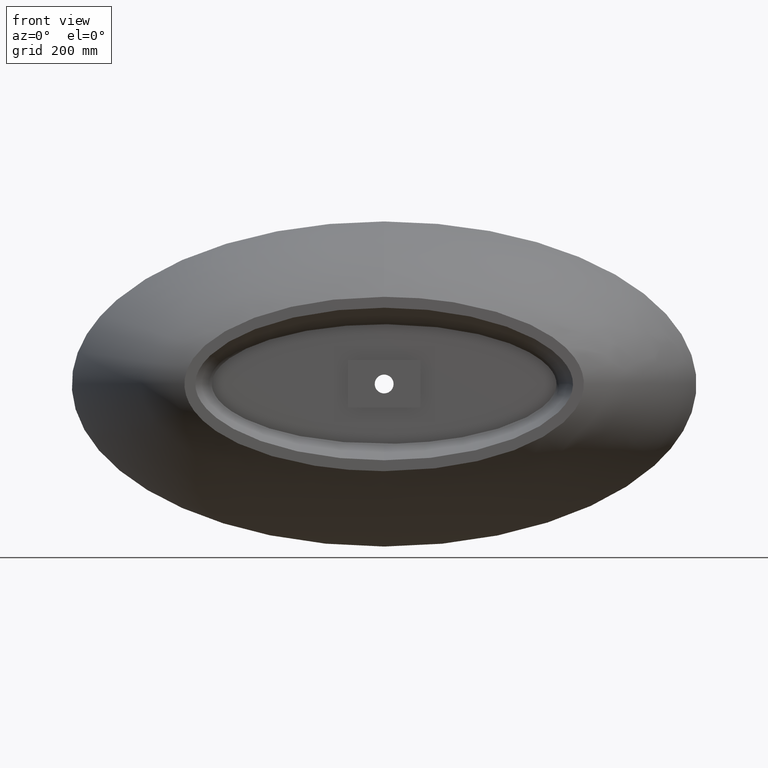
[diagram: clean part render]
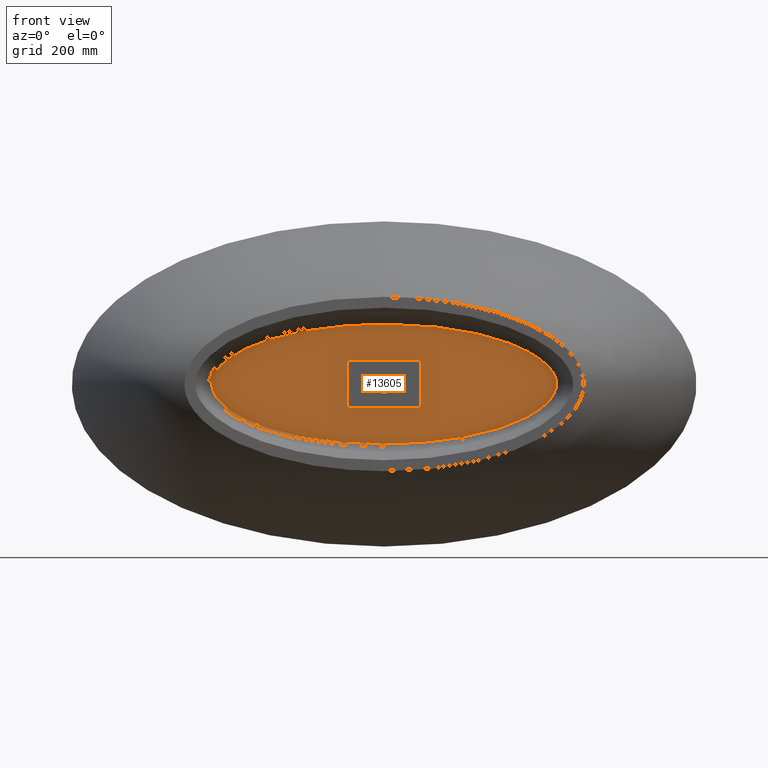
[diagram: same view with one face highlighted and labeled with its STEP entity id]
A machine part, front view. The second image highlights one B-rep face of the part: STEP entity #13605.
In plain terms, the highlighted planar face has unit normal (-0, -1, 0).
Its self-contained STEP definition (entity closure, byte-faithful):
#4 = CARTESIAN_POINT ( 'NONE',  ( -203.3362610526787932, -457.9999999999837428, -148.5672281375684349 ) ) ;
#13 = CARTESIAN_POINT ( 'NONE',  ( 263.7500621887189709, -458.0000000000218279, 136.4371403909299545 ) ) ;
#29 = CARTESIAN_POINT ( 'NONE',  ( -214.7227131181585378, -457.9999999999820943, 146.5403786824627730 ) ) ;
#41 = CARTESIAN_POINT ( 'NONE',  ( -100.0000000000379714, -458.0000000000088676, 65.00000000000098055 ) ) ;
#151 = CARTESIAN_POINT ( 'NONE',  ( -72.52857827940643176, -457.9999999999939746, 162.6882242696353273 ) ) ;
#246 = CARTESIAN_POINT ( 'NONE',  ( -425.9191432543311180, -457.9999999999650413, -71.00011195045443912 ) ) ;
#323 = CARTESIAN_POINT ( 'NONE',  ( -461.9698611833281348, -457.9999999999618581, 36.16066304259809527 ) ) ;
#398 = CARTESIAN_POINT ( 'NONE',  ( -395.2251254721415989, -457.9999999999676561, -90.03387653537728852 ) ) ;
#470 = CARTESIAN_POINT ( 'NONE',  ( -474.3374541454987821, -457.9999999999608917, -5.818919335399061588 ) ) ;
#583 = DIRECTION ( 'NONE',  ( -0.000000000000000000, -4.697097411875662165E-15, 1.000000000000000000 ) ) ;
#670 = CARTESIAN_POINT ( 'NONE',  ( 455.8260057091162025, -458.0000000000378577, 44.13552997813786760 ) ) ;
#730 = CARTESIAN_POINT ( 'NONE',  ( -474.6489974099688993, -457.9999999999610054, -0.8940113861568027565 ) ) ;
#739 = CARTESIAN_POINT ( 'NONE',  ( 403.6953411033807129, -458.0000000000335376, 85.07945497996307438 ) ) ;
#806 = CARTESIAN_POINT ( 'NONE',  ( -289.4952207634387946, -457.9999999999766374, -129.9044375458800857 ) ) ;
#812 = EDGE_LOOP ( 'NONE', ( #5339, #3962, #4261, #5414 ) ) ;
#814 = CARTESIAN_POINT ( 'NONE',  ( 459.0811841190700875, -458.0000000000383693, -40.14395854051804946 ) ) ;
#850 = VERTEX_POINT ( 'NONE', #10271 ) ;
#863 = DIRECTION ( 'NONE',  ( 1.000000000000000000, 8.298917109073045140E-14, 0.000000000000000000 ) ) ;
#874 = CARTESIAN_POINT ( 'NONE',  ( -27.82430869321056122, -457.9999999999982947, -164.4103004814737403 ) ) ;
#883 = CARTESIAN_POINT ( 'NONE',  ( 457.6238002247121699, -458.0000000000380282, 41.95964754486419679 ) ) ;
#952 = CARTESIAN_POINT ( 'NONE',  ( 473.9425654670679933, -458.0000000000395630, -8.636812610747261587 ) ) ;
#975 = CARTESIAN_POINT ( 'NONE',  ( -257.7114711634577020, -457.9999999999785700, 138.1368031276257682 ) ) ;
#1000 = CARTESIAN_POINT ( 'NONE',  ( 300.0835707580320673, -458.0000000000254090, -127.0013392677508648 ) ) ;
#1014 = CARTESIAN_POINT ( 'NONE',  ( 1.196254024217419998, -458.0000000000007390, -164.6535848504579462 ) ) ;
#1023 = EDGE_LOOP ( 'NONE', ( #4110, #11343 ) ) ;
#1025 = CARTESIAN_POINT ( 'NONE',  ( 234.0249431510857505, -458.0000000000195541, 142.9649927307600024 ) ) ;
#1078 = CARTESIAN_POINT ( 'NONE',  ( 426.4493301212185656, -458.0000000000356977, -70.62167318571685826 ) ) ;
#1123 = CARTESIAN_POINT ( 'NONE',  ( -321.2502841115555725, -457.9999999999731699, 120.5211777896526257 ) ) ;
#1146 = CARTESIAN_POINT ( 'NONE',  ( 435.3465623606675194, -458.0000000000366072, -63.77987338754127933 ) ) ;
#1306 = CARTESIAN_POINT ( 'NONE',  ( -203.9147308655841755, -457.9999999999830038, 148.4711068804445233 ) ) ;
#1334 = CARTESIAN_POINT ( 'NONE',  ( -434.7461934299126938, -457.9999999999643023, -64.35854398429523826 ) ) ;
#1405 = CARTESIAN_POINT ( 'NONE',  ( -421.4735190174855006, -457.9999999999650981, 74.03966469725796173 ) ) ;
#1477 = CARTESIAN_POINT ( 'NONE',  ( -421.3686779550423580, -457.9999999999653824, -74.15467203434236865 ) ) ;
#1549 = CARTESIAN_POINT ( 'NONE',  ( -461.7555158546539928, -457.9999999999619718, -36.51345883058849751 ) ) ;
#1744 = CARTESIAN_POINT ( 'NONE',  ( 472.6929374336294813, -458.0000000000394493, -14.12914982097595029 ) ) ;
#1804 = CARTESIAN_POINT ( 'NONE',  ( -472.7862084786748369, -457.9999999999610054, -14.01492642570890546 ) ) ;
#1811 = CARTESIAN_POINT ( 'NONE',  ( 469.8073328443106220, -458.0000000000390514, 22.25799118518110120 ) ) ;
#1874 = CARTESIAN_POINT ( 'NONE',  ( 60.67022169994042002, -458.0000000000055707, -163.4583642000735608 ) ) ;
#1882 = CARTESIAN_POINT ( 'NONE',  ( 457.3375875255815686, -458.0000000000383125, -42.33783613503098309 ) ) ;
#1943 = VECTOR ( 'NONE', #583, 1000.000000000000000 ) ;
#1955 = CARTESIAN_POINT ( 'NONE',  ( 468.1474859836703786, -458.0000000000391083, -25.92238405537240098 ) ) ;
#2002 = CARTESIAN_POINT ( 'NONE',  ( 257.3964697796856740, -458.0000000000217142, -137.9544277993156527 ) ) ;
#2023 = CARTESIAN_POINT ( 'NONE',  ( 469.5222863613054187, -458.0000000000389946, 22.90751129869141778 ) ) ;
#2083 = CARTESIAN_POINT ( 'NONE',  ( 170.7473304215401129, -458.0000000000147224, -153.4841578738320607 ) ) ;
#2094 = CARTESIAN_POINT ( 'NONE',  ( 190.6338990215297144, -458.0000000000157456, 150.6071910862952166 ) ) ;
#2139 = CARTESIAN_POINT ( 'NONE',  ( 412.5318553126356846, -458.0000000000345608, -79.87545376114881890 ) ) ;
#2152 = CARTESIAN_POINT ( 'NONE',  ( 110.3613674763271746, -458.0000000000097202, -160.0605555359367713 ) ) ;
#2164 = CARTESIAN_POINT ( 'NONE',  ( -6.322688362038402232, -457.9999999999993179, 164.6479110229337550 ) ) ;
#2371 = CARTESIAN_POINT ( 'NONE',  ( -193.0735124100270070, -457.9999999999839702, 150.2254951104865768 ) ) ;
#2400 = CARTESIAN_POINT ( 'NONE',  ( -426.0441486328942347, -457.9999999999648139, 70.85794424064553709 ) ) ;
#2445 = B_SPLINE_CURVE_WITH_KNOTS ( 'NONE', 3,
 ( #13301, #12089, #975, #9740, #6574, #1123, #9879, #13236, #5358, #3264, #6644, #3475, #11081, #5502, #14099, #4420, #13163, #11015, #5573, #10161, #1405, #2400, #9149, #5780, #3621, #6997, #8064, #9417, #6924, #10091, #323, #7260, #12299, #4706, #6184, #7922, #10559, #11295, #11226, #12442, #12226, #9077, #5046, #5709, #7994, #730, #13785, #2616, #11627, #470, #3957, #13444, #1804, #2879, #2474, #11367, #5120, #12369, #9001, #2544, #1549, #6854, #9488, #13855, #4034, #6784, #4779, #3550, #11155, #13516, #1334, #246, #1477, #5850, #10234, #8330, #398, #12712, #3691, #5921, #10304, #4630, #13371, #10839, #10630, #10907, #806, #7543, #6254, #11770, #11915, #6328, #4, #14135, #5191, #8686, #2953, #12849, #3021, #9776, #11845, #10770, #3166, #874, #7331, #9559, #1014, #5261, #7400, #4316, #3095, #6538, #1874, #4103, #8409, #14062, #2152, #9629, #8478, #7609, #2083, #5325, #11700, #12781 ),
 .UNSPECIFIED., .F., .F.,
 ( 4, 2, 2, 2, 2, 2, 2, 2, 2, 2, 2, 2, 2, 2, 2, 2, 2, 2, 2, 2, 2, 2, 2, 2, 2, 2, 2, 2, 2, 2, 2, 2, 2, 2, 2, 2, 2, 2, 1, 2, 2, 2, 2, 2, 2, 2, 2, 2, 2, 2, 2, 2, 2, 2, 2, 1, 2, 2, 2, 2, 2, 2, 4 ),
 ( 1.280457457337115024, 1.346842033373161218, 1.380034321391184537, 1.413226609409207857, 1.421524681413713687, 1.429822753418219516, 1.446418897427230732, 1.463015041436242170, 1.479611185445253607, 1.496207329454265045, 1.504505401458770653, 1.512803473463276482, 1.529399617472287698, 1.545995761481299136, 1.554293833485804965, 1.558442869488057880, 1.562591905490310795, 1.570889977494816403, 1.575039013497069318, 1.579188049499322233, 1.587486121503827841, 1.591635157506080533, 1.595784193508333448, 1.597858711509459795, 1.599933229510586363, 1.604082265512839278, 1.612380337517344886, 1.616529373519597801, 1.620678409521850494, 1.628976481526356324, 1.637274553530862153, 1.641423589533115068, 1.645572625535367983, 1.653870697539873591, 1.662168769544379199, 1.678764913553390636, 1.695361057562402074, 1.703659129566907682, 1.711957201571413290, 1.745149489589436165, 1.778341777607459040, 1.811534065625481915, 1.819832137629987745, 1.828130209634493797, 1.844726353643505679, 1.877918641661528998, 1.911110929679552539, 1.944303217697576081, 2.010687793733623163, 2.043880081751646927, 2.060476225760658586, 2.077072369769670246, 2.110264657787693565, 2.126860801796705669, 2.131009837798958806, 2.135158873801211499, 2.143456945805717329, 2.209841521841764411, 2.226437665850776071, 2.243033809859787731, 2.276226097877811050, 2.309418385895834813, 2.342610673913858133 ),
 .UNSPECIFIED. ) ;
#2474 = CARTESIAN_POINT ( 'NONE',  ( -471.0199278204644884, -457.9999999999613465, -19.28497605695046602 ) ) ;
#2544 = CARTESIAN_POINT ( 'NONE',  ( -463.3322594859509422, -457.9999999999618012, -34.20496999978118424 ) ) ;
#2616 = CARTESIAN_POINT ( 'NONE',  ( -474.5679123391519738, -457.9999999999609486, -3.009095415439808630 ) ) ;
#2817 = CARTESIAN_POINT ( 'NONE',  ( 407.3175207086603109, -458.0000000000340492, 82.97741114816756181 ) ) ;
#2879 = CARTESIAN_POINT ( 'NONE',  ( -471.4958890499129893, -457.9999999999611759, -17.97657465649404784 ) ) ;
#2888 = CARTESIAN_POINT ( 'NONE',  ( 396.3883472641058461, -458.0000000000330829, 89.17789211073279887 ) ) ;
#2892 = DIRECTION ( 'NONE',  ( 0.04066471792907714461, -1.210861832768385846E-15, 0.9991728482678803314 ) ) ;
#2953 = CARTESIAN_POINT ( 'NONE',  ( -105.0467455197003090, -457.9999999999918714, -160.5365116718944023 ) ) ;
#2961 = CARTESIAN_POINT ( 'NONE',  ( 474.0160173842863855, -458.0000000000395062, 8.161628675022539525 ) ) ;
#3021 = CARTESIAN_POINT ( 'NONE',  ( -77.52469718927282827, -457.9999999999940883, -162.4058490396930097 ) ) ;
#3029 = CARTESIAN_POINT ( 'NONE',  ( 474.5046023919618960, -458.0000000000395062, 3.941340456585193941 ) ) ;
#3067 = VERTEX_POINT ( 'NONE', #29 ) ;
#3095 = CARTESIAN_POINT ( 'NONE',  ( 13.65343863127657187, -458.0000000000015916, -164.5859712156450314 ) ) ;
#3105 = CARTESIAN_POINT ( 'NONE',  ( 471.1340739200426810, -458.0000000000392220, 18.98919146387659040 ) ) ;
#3166 = CARTESIAN_POINT ( 'NONE',  ( -38.87563275750395775, -457.9999999999973852, -164.1342255165154995 ) ) ;
#3174 = CARTESIAN_POINT ( 'NONE',  ( -61.47495829359198893, -457.9999999999947704, 163.2463452183471020 ) ) ;
#3242 = CARTESIAN_POINT ( 'NONE',  ( -214.7227131181585378, -457.9999999999820943, 146.5403786824627730 ) ) ;
#3264 = CARTESIAN_POINT ( 'NONE',  ( -352.5496639343368770, -457.9999999999706688, 109.2292102177917599 ) ) ;
#3313 = CARTESIAN_POINT ( 'NONE',  ( 223.1921319330941458, -458.0000000000185310, 145.0548212177989740 ) ) ;
#3360 = CARTESIAN_POINT ( 'NONE',  ( 235.8663481838364078, -458.0000000000200657, -142.5756040811267837 ) ) ;
#3380 = CARTESIAN_POINT ( 'NONE',  ( 4.685175355973005829, -458.0000000000002274, 164.6573205925384684 ) ) ;
#3449 = CARTESIAN_POINT ( 'NONE',  ( 330.3552650101311770, -458.0000000000273985, 117.5059754217030843 ) ) ;
#3475 = CARTESIAN_POINT ( 'NONE',  ( -362.8527607207830101, -457.9999999999698161, 105.0680728059334115 ) ) ;
#3537 = VECTOR ( 'NONE', #863, 1000.000000000000000 ) ;
#3550 = CARTESIAN_POINT ( 'NONE',  ( -447.1667896464894625, -457.9999999999633360, -53.40086631645799287 ) ) ;
#3621 = CARTESIAN_POINT ( 'NONE',  ( -439.3121974558212628, -457.9999999999636202, 60.62370592334362840 ) ) ;
#3691 = CARTESIAN_POINT ( 'NONE',  ( -362.7490753605040936, -457.9999999999704414, -105.2208418390019062 ) ) ;
#3755 = CARTESIAN_POINT ( 'NONE',  ( 0.3243749999992085464, -458.0000000000001705, 25.94999999999924967 ) ) ;
#3957 = CARTESIAN_POINT ( 'NONE',  ( -474.1586015909247180, -457.9999999999610054, -7.206031858350624653 ) ) ;
#3962 = ORIENTED_EDGE ( 'NONE', *, *, #11629, .F. ) ;
#3964 = CARTESIAN_POINT ( 'NONE',  ( 468.9339486988823182, -458.0000000000389377, 24.19567464636804388 ) ) ;
#4034 = CARTESIAN_POINT ( 'NONE',  ( -455.7178985205545700, -457.9999999999624833, -44.25482148482017664 ) ) ;
#4043 = CARTESIAN_POINT ( 'NONE',  ( 461.0715476534536492, -458.0000000000384262, 37.49152490221146650 ) ) ;
#4103 = CARTESIAN_POINT ( 'NONE',  ( 88.28204303592251279, -458.0000000000079012, -161.7293196811505993 ) ) ;
#4110 = ORIENTED_EDGE ( 'NONE', *, *, #8832, .T. ) ;
#4112 = CARTESIAN_POINT ( 'NONE',  ( 464.6847591506099775, -458.0000000000388241, -32.02027866610677620 ) ) ;
#4181 = CARTESIAN_POINT ( 'NONE',  ( 420.2982331248061314, -458.0000000000348450, 74.89255299274286415 ) ) ;
#4233 = CARTESIAN_POINT ( 'NONE',  ( 352.5547599488228343, -458.0000000000297291, -109.2402216049731720 ) ) ;
#4261 = ORIENTED_EDGE ( 'NONE', *, *, #7476, .F. ) ;
#4316 = CARTESIAN_POINT ( 'NONE',  ( 9.502308139766240558, -458.0000000000013074, -164.6242566348337846 ) ) ;
#4323 = VERTEX_POINT ( 'NONE', #10207 ) ;
#4396 = CARTESIAN_POINT ( 'NONE',  ( 255.6517919608206171, -458.0000000000212026, 138.3203605532162328 ) ) ;
#4420 = CARTESIAN_POINT ( 'NONE',  ( -392.9284027068424052, -457.9999999999674287, 91.00445108024075580 ) ) ;
#4532 = CARTESIAN_POINT ( 'NONE',  ( 26.67977809218401930, -458.0000000000019327, 164.4228113087031034 ) ) ;
#4630 = CARTESIAN_POINT ( 'NONE',  ( -321.3607522339121374, -457.9999999999739657, -120.4808416797508670 ) ) ;
#4706 = CARTESIAN_POINT ( 'NONE',  ( -466.4598855785196179, -457.9999999999615738, 29.08448982517298731 ) ) ;
#4779 = CARTESIAN_POINT ( 'NONE',  ( -451.0658809469872494, -457.9999999999628812, -49.45564054915283947 ) ) ;
#4842 = PLANE ( 'NONE',  #9051 ) ;
#5046 = CARTESIAN_POINT ( 'NONE',  ( -474.3825970192244768, -457.9999999999608917, 5.382347861721539672 ) ) ;
#5055 = CARTESIAN_POINT ( 'NONE',  ( 454.9106408527434837, -458.0000000000379714, 45.20279915240118385 ) ) ;
#5120 = CARTESIAN_POINT ( 'NONE',  ( -469.4159313981777473, -457.9999999999613465, -23.16476762465563866 ) ) ;
#5127 = CARTESIAN_POINT ( 'NONE',  ( 447.9815594326078099, -458.0000000000375167, -52.69615462451380239 ) ) ;
#5191 = CARTESIAN_POINT ( 'NONE',  ( -159.8322450104641348, -457.9999999999873239, -155.0823858108271054 ) ) ;
#5200 = CARTESIAN_POINT ( 'NONE',  ( 451.8940447242052301, -458.0000000000377440, -48.71571079346229283 ) ) ;
#5261 = CARTESIAN_POINT ( 'NONE',  ( 2.582212278359106605, -458.0000000000008527, -164.6515631764592058 ) ) ;
#5268 = CARTESIAN_POINT ( 'NONE',  ( 471.4649008114607227, -458.0000000000393925, -18.19981192336353359 ) ) ;
#5291 = CARTESIAN_POINT ( 'NONE',  ( 99.99999999996204281, -457.9999999999916440, -64.99999999999901945 ) ) ;
#5325 = CARTESIAN_POINT ( 'NONE',  ( 192.5336417575944381, -458.0000000000164277, -150.3031647728943483 ) ) ;
#5334 = CARTESIAN_POINT ( 'NONE',  ( 468.6307970761055799, -458.0000000000389946, 24.83411128201524676 ) ) ;
#5339 = ORIENTED_EDGE ( 'NONE', *, *, #10510, .F. ) ;
#5358 = CARTESIAN_POINT ( 'NONE',  ( -347.3595585755619481, -457.9999999999711804, 111.2366928543082025 ) ) ;
#5386 = CARTESIAN_POINT ( 'NONE',  ( 214.2108371341595046, -458.0000000000183036, -146.6219104045486574 ) ) ;
#5408 = CARTESIAN_POINT ( 'NONE',  ( 92.47663923362816263, -458.0000000000075033, 161.4774051751000741 ) ) ;
#5414 = ORIENTED_EDGE ( 'NONE', *, *, #11501, .F. ) ;
#5457 = CARTESIAN_POINT ( 'NONE',  ( 432.0330209028825266, -458.0000000000362661, -66.38600316474494889 ) ) ;
#5478 = CARTESIAN_POINT ( 'NONE',  ( -78.05848946807768129, -457.9999999999934630, 162.3740664496907584 ) ) ;
#5502 = CARTESIAN_POINT ( 'NONE',  ( -378.0511323925536544, -457.9999999999685656, 98.34059133941686071 ) ) ;
#5525 = CARTESIAN_POINT ( 'NONE',  ( 436.4403954550070353, -458.0000000000363798, -62.89360037281308280 ) ) ;
#5546 = CARTESIAN_POINT ( 'NONE',  ( 274.5395952334494041, -458.0000000000227374, 133.8127295227878051 ) ) ;
#5573 = CARTESIAN_POINT ( 'NONE',  ( -412.1749253276980198, -457.9999999999659508, 80.10487267060558736 ) ) ;
#5616 = CARTESIAN_POINT ( 'NONE',  ( 103.4159944255696644, -458.0000000000084128, 160.6652571827506506 ) ) ;
#5683 = CARTESIAN_POINT ( 'NONE',  ( 70.57538803921526949, -458.0000000000057412, 162.8313906684556969 ) ) ;
#5709 = CARTESIAN_POINT ( 'NONE',  ( -474.6011280356739235, -457.9999999999609486, 2.606390077591851817 ) ) ;
#5780 = CARTESIAN_POINT ( 'NONE',  ( -435.0066878237104788, -457.9999999999639613, 64.16149370126888130 ) ) ;
#5850 = CARTESIAN_POINT ( 'NONE',  ( -414.3707590589215215, -457.9999999999660645, -78.67746299155520262 ) ) ;
#5921 = CARTESIAN_POINT ( 'NONE',  ( -352.5301014691409591, -457.9999999999711804, -109.3459123359224350 ) ) ;
#6124 = CARTESIAN_POINT ( 'NONE',  ( 473.2401188700596890, -458.0000000000395062, 12.30409545623454903 ) ) ;
#6184 = CARTESIAN_POINT ( 'NONE',  ( -467.7862960081940855, -457.9999999999614602, 26.63594679452740266 ) ) ;
#6191 = CARTESIAN_POINT ( 'NONE',  ( 472.5094001494519489, -458.0000000000394493, 15.00822910498271057 ) ) ;
#6254 = CARTESIAN_POINT ( 'NONE',  ( -268.0901717985228174, -457.9999999999782858, -135.4636320700408874 ) ) ;
#6261 = VERTEX_POINT ( 'NONE', #11266 ) ;
#6263 = CARTESIAN_POINT ( 'NONE',  ( 391.4631326522516019, -458.0000000000326281, 91.76564021748365008 ) ) ;
#6328 = CARTESIAN_POINT ( 'NONE',  ( -224.9978371903932839, -457.9999999999819238, -144.7097530372284666 ) ) ;
#6336 = CARTESIAN_POINT ( 'NONE',  ( 351.1003063961168777, -458.0000000000291607, 109.9213478860763900 ) ) ;
#6384 = CARTESIAN_POINT ( 'NONE',  ( 347.3579744205587758, -458.0000000000292744, -111.2470956355410152 ) ) ;
#6406 = CARTESIAN_POINT ( 'NONE',  ( 472.4976034697052683, -458.0000000000396199, -14.81306667774397035 ) ) ;
#6454 = CARTESIAN_POINT ( 'NONE',  ( 289.4616558428020880, -458.0000000000245564, -129.9682048316489613 ) ) ;
#6477 = CARTESIAN_POINT ( 'NONE',  ( -160.4279412317959270, -457.9999999999864713, 154.8418160467447251 ) ) ;
#6525 = CARTESIAN_POINT ( 'NONE',  ( 421.8694835914685655, -458.0000000000354134, -73.81095176956009141 ) ) ;
#6538 = CARTESIAN_POINT ( 'NONE',  ( 38.55695268512940999, -458.0000000000037517, -164.2790292149385323 ) ) ;
#6574 = CARTESIAN_POINT ( 'NONE',  ( -300.1815438078436955, -457.9999999999751594, 126.9812595752674298 ) ) ;
#6644 = CARTESIAN_POINT ( 'NONE',  ( -355.1339902448627299, -457.9999999999704983, 108.2051366942383339 ) ) ;
#6758 = CARTESIAN_POINT ( 'NONE',  ( 288.0021430607544062, -458.0000000000238174, 130.3887716818904323 ) ) ;
#6784 = CARTESIAN_POINT ( 'NONE',  ( -452.9641226837543968, -457.9999999999628812, -47.42075277597386673 ) ) ;
#6854 = CARTESIAN_POINT ( 'NONE',  ( -459.2471027942503952, -457.9999999999622560, -39.88383981491048758 ) ) ;
#6906 = CARTESIAN_POINT ( 'NONE',  ( -100.0000000000379714, -458.0000000000088676, 65.00000000000098055 ) ) ;
#6924 = CARTESIAN_POINT ( 'NONE',  ( -458.6530996135952023, -457.9999999999620854, 40.70149777156452586 ) ) ;
#6997 = CARTESIAN_POINT ( 'NONE',  ( -447.5296404264755665, -457.9999999999628244, 53.14616231339648067 ) ) ;
#7133 = FACE_OUTER_BOUND ( 'NONE', #1023, .T. ) ;
#7198 = CARTESIAN_POINT ( 'NONE',  ( 406.1141727827355794, -458.0000000000338218, 83.68317052550290214 ) ) ;
#7260 = CARTESIAN_POINT ( 'NONE',  ( -463.5340895591101571, -457.9999999999617444, 33.83757480347021129 ) ) ;
#7268 = CARTESIAN_POINT ( 'NONE',  ( 424.8671759017992713, -458.0000000000352429, 71.76265479888333232 ) ) ;
#7331 = CARTESIAN_POINT ( 'NONE',  ( -11.24267775327634666, -457.9999999999996589, -164.6180758172217509 ) ) ;
#7339 = CARTESIAN_POINT ( 'NONE',  ( 470.4581848948035372, -458.0000000000392788, -20.82191153469348066 ) ) ;
#7400 = CARTESIAN_POINT ( 'NONE',  ( 5.350359805955985593, -458.0000000000009663, -164.6432200703213198 ) ) ;
#7409 = CARTESIAN_POINT ( 'NONE',  ( 473.0561658494530661, -458.0000000000394493, -12.76104445715203362 ) ) ;
#7476 = EDGE_CURVE ( 'NONE', #6261, #8164, #12977, .T. ) ;
#7482 = CARTESIAN_POINT ( 'NONE',  ( 466.8396688955234026, -458.0000000000389377, -28.39890320532609991 ) ) ;
#7530 = CARTESIAN_POINT ( 'NONE',  ( 370.6012983836295689, -458.0000000000312070, -101.6860445061755058 ) ) ;
#7543 = CARTESIAN_POINT ( 'NONE',  ( -284.1505612925970468, -457.9999999999769784, -131.3380368491703791 ) ) ;
#7552 = CARTESIAN_POINT ( 'NONE',  ( -171.3300915634316368, -457.9999999999855618, 153.4107115889102886 ) ) ;
#7609 = CARTESIAN_POINT ( 'NONE',  ( 159.8190111677872665, -458.0000000000138130, -154.9134407939190794 ) ) ;
#7669 = CARTESIAN_POINT ( 'NONE',  ( 407.7734712793308063, -458.0000000000342766, -82.74961413888659933 ) ) ;
#7824 = CARTESIAN_POINT ( 'NONE',  ( 136.1980106159765853, -458.0000000000111413, 157.7965072301850853 ) ) ;
#7922 = CARTESIAN_POINT ( 'NONE',  ( -469.5553085291607545, -457.9999999999612896, 22.84675869759068334 ) ) ;
#7926 = LINE ( 'NONE', #41, #13162 ) ;
#7994 = CARTESIAN_POINT ( 'NONE',  ( -474.6556976660998544, -457.9999999999609486, 1.211017654812031719 ) ) ;
#8056 = FACE_BOUND ( 'NONE', #812, .T. ) ;
#8064 = CARTESIAN_POINT ( 'NONE',  ( -451.4385234485162073, -457.9999999999625970, 49.20329112659067761 ) ) ;
#8164 = VERTEX_POINT ( 'NONE', #5291 ) ;
#8267 = CARTESIAN_POINT ( 'NONE',  ( 452.1196491390968504, -458.0000000000375735, 48.34824656476362748 ) ) ;
#8330 = CARTESIAN_POINT ( 'NONE',  ( -407.2353769948261402, -457.9999999999667466, -83.02964199952046442 ) ) ;
#8340 = CARTESIAN_POINT ( 'NONE',  ( 470.6290604905080954, -458.0000000000392220, 20.30363114955791914 ) ) ;
#8409 = CARTESIAN_POINT ( 'NONE',  ( 93.80291113115278279, -458.0000000000084128, -161.3481628742414671 ) ) ;
#8415 = CARTESIAN_POINT ( 'NONE',  ( 446.2565960963347607, -458.0000000000374030, 54.28631016309392976 ) ) ;
#8478 = CARTESIAN_POINT ( 'NONE',  ( 137.8958772706373281, -458.0000000000119371, -157.4671468495535009 ) ) ;
#8486 = CARTESIAN_POINT ( 'NONE',  ( 473.6881453878893922, -458.0000000000394493, -10.01557785332815520 ) ) ;
#8553 = CARTESIAN_POINT ( 'NONE',  ( 410.9084411750710046, -458.0000000000343334, 80.83612721464629658 ) ) ;
#8604 = CARTESIAN_POINT ( 'NONE',  ( 321.2089531772169266, -458.0000000000271712, -120.5245651940568052 ) ) ;
#8626 = CARTESIAN_POINT ( 'NONE',  ( 271.8424576930509602, -458.0000000000225668, 134.4834702591657560 ) ) ;
#8673 = CARTESIAN_POINT ( 'NONE',  ( 393.2784788292400435, -458.0000000000330260, -90.98407765452660101 ) ) ;
#8686 = CARTESIAN_POINT ( 'NONE',  ( -137.9702000518100817, -457.9999999999890292, -157.6100147091410406 ) ) ;
#8765 = VERTEX_POINT ( 'NONE', #10942 ) ;
#8804 = VECTOR ( 'NONE', #11277, 1000.000000000000000 ) ;
#8816 = CARTESIAN_POINT ( 'NONE',  ( 368.0438116592370648, -458.0000000000309228, -102.8084350228888866 ) ) ;
#8832 = EDGE_CURVE ( 'NONE', #3067, #8765, #2445, .T. ) ;
#8837 = CARTESIAN_POINT ( 'NONE',  ( -127.6353583141695509, -457.9999999999891998, 158.6781427873623613 ) ) ;
#8902 = CARTESIAN_POINT ( 'NONE',  ( -55.95107415824534769, -457.9999999999953388, 163.4903186671643027 ) ) ;
#9001 = CARTESIAN_POINT ( 'NONE',  ( -466.2572526800225887, -457.9999999999614602, -29.44073277433192004 ) ) ;
#9051 = AXIS2_PLACEMENT_3D ( 'NONE', #3755, #13654, #2892 ) ;
#9077 = CARTESIAN_POINT ( 'NONE',  ( -474.2183331096541110, -457.9999999999608917, 6.762892329365651101 ) ) ;
#9149 = CARTESIAN_POINT ( 'NONE',  ( -428.3066936704986460, -457.9999999999645297, 69.22129154729974232 ) ) ;
#9331 = LINE ( 'NONE', #9475, #1943 ) ;
#9417 = CARTESIAN_POINT ( 'NONE',  ( -456.9000656612169564, -457.9999999999622560, 42.87863529811486529 ) ) ;
#9425 = CARTESIAN_POINT ( 'NONE',  ( 463.9348082074683930, -458.0000000000387104, -33.21210236473396549 ) ) ;
#9475 = CARTESIAN_POINT ( 'NONE',  ( 99.99999999996204281, -457.9999999999922693, 65.00000000000098055 ) ) ;
#9488 = CARTESIAN_POINT ( 'NONE',  ( -458.3869101556420560, -457.9999999999623128, -40.99179723857039903 ) ) ;
#9497 = CARTESIAN_POINT ( 'NONE',  ( 462.6875478611682411, -458.0000000000384262, 35.19128228651197077 ) ) ;
#9559 = CARTESIAN_POINT ( 'NONE',  ( -5.714693060491973675, -458.0000000000000568, -164.6529341316621640 ) ) ;
#9567 = CARTESIAN_POINT ( 'NONE',  ( 474.7046931214582060, -458.0000000000396199, -1.693024715113237821 ) ) ;
#9629 = CARTESIAN_POINT ( 'NONE',  ( 126.9010544307000430, -458.0000000000111413, -158.5915324066212406 ) ) ;
#9639 = CARTESIAN_POINT ( 'NONE',  ( 474.2213412861011648, -458.0000000000396767, 6.766443333404296823 ) ) ;
#9712 = CARTESIAN_POINT ( 'NONE',  ( 450.1990647500730915, -458.0000000000373461, 50.36998888738164482 ) ) ;
#9740 = CARTESIAN_POINT ( 'NONE',  ( -289.5960979353510538, -457.9999999999758984, 129.9403100982007118 ) ) ;
#9763 = CARTESIAN_POINT ( 'NONE',  ( 383.3202407618954908, -458.0000000000321734, -95.95320506456529586 ) ) ;
#9776 = CARTESIAN_POINT ( 'NONE',  ( -72.01083134920476425, -457.9999999999946567, -162.7169872718813508 ) ) ;
#9785 = CARTESIAN_POINT ( 'NONE',  ( 298.6889058331641991, -458.0000000000247269, 127.4289827751741768 ) ) ;
#9879 = CARTESIAN_POINT ( 'NONE',  ( -331.7335508518197003, -457.9999999999723173, 117.0199996081970824 ) ) ;
#9927 = CARTESIAN_POINT ( 'NONE',  ( 54.13110865274634875, -458.0000000000043201, 163.6269337403772965 ) ) ;
#9994 = CARTESIAN_POINT ( 'NONE',  ( -28.35771092091478351, -457.9999999999973852, 164.3977038361566656 ) ) ;
#10063 = CARTESIAN_POINT ( 'NONE',  ( -11.82920278981860740, -457.9999999999989200, 164.6122359483360356 ) ) ;
#10091 = CARTESIAN_POINT ( 'NONE',  ( -461.1584473763201117, -457.9999999999619149, 37.30894007909522969 ) ) ;
#10095 = DIRECTION ( 'NONE',  ( 0.000000000000000000, 4.697097411875662165E-15, -1.000000000000000000 ) ) ;
#10161 = CARTESIAN_POINT ( 'NONE',  ( -419.1644367362836761, -457.9999999999653255, 75.58547285279537675 ) ) ;
#10207 = CARTESIAN_POINT ( 'NONE',  ( -100.0000000000379714, -458.0000000000088676, 65.00000000000098055 ) ) ;
#10234 = CARTESIAN_POINT ( 'NONE',  ( -412.0076962549167661, -457.9999999999662350, -80.15102445441381462 ) ) ;
#10271 = CARTESIAN_POINT ( 'NONE',  ( 99.99999999996204281, -457.9999999999922693, 65.00000000000098055 ) ) ;
#10304 = CARTESIAN_POINT ( 'NONE',  ( -331.8364556512079844, -457.9999999999730562, -116.9771605688671201 ) ) ;
#10500 = CARTESIAN_POINT ( 'NONE',  ( 465.6880622131920404, -458.0000000000388809, 30.44532471958171271 ) ) ;
#10510 = EDGE_CURVE ( 'NONE', #850, #4323, #13498, .T. ) ;
#10559 = CARTESIAN_POINT ( 'NONE',  ( -470.1086664463560396, -457.9999999999612328, 21.56454004223897414 ) ) ;
#10568 = CARTESIAN_POINT ( 'NONE',  ( 458.5050033702497103, -458.0000000000381419, 40.85231019556498211 ) ) ;
#10630 = CARTESIAN_POINT ( 'NONE',  ( -300.1638543656511047, -457.9999999999757279, -126.8940162165047809 ) ) ;
#10639 = CARTESIAN_POINT ( 'NONE',  ( 381.5241099982416699, -458.0000000000315481, 96.70642492006162172 ) ) ;
#10708 = CARTESIAN_POINT ( 'NONE',  ( 438.0419008700747554, -458.0000000000364935, 61.70500227486267164 ) ) ;
#10770 = CARTESIAN_POINT ( 'NONE',  ( -55.44794028542505515, -457.9999999999959073, -163.5122777961765905 ) ) ;
#10778 = CARTESIAN_POINT ( 'NONE',  ( 473.2244191304252467, -458.0000000000394493, -12.07568281431261425 ) ) ;
#10826 = CARTESIAN_POINT ( 'NONE',  ( 360.3182383432779829, -458.0000000000302975, -106.0845768133065263 ) ) ;
#10839 = CARTESIAN_POINT ( 'NONE',  ( -305.4810142744932477, -457.9999999999752163, -125.3341336123234271 ) ) ;
#10894 = CARTESIAN_POINT ( 'NONE',  ( 268.1182802203433653, -458.0000000000226805, -135.4455508045745944 ) ) ;
#10907 = CARTESIAN_POINT ( 'NONE',  ( -297.4978456487354492, -457.9999999999758415, -127.6587502683448321 ) ) ;
#10942 = CARTESIAN_POINT ( 'NONE',  ( 214.2108371341595046, -458.0000000000183036, -146.6219104045486574 ) ) ;
#10988 = CARTESIAN_POINT ( 'NONE',  ( 319.8651007845638787, -458.0000000000265459, 120.9866149357146270 ) ) ;
#11015 = CARTESIAN_POINT ( 'NONE',  ( -407.4327044704408536, -457.9999999999662919, 82.96133595946992045 ) ) ;
#11056 = CARTESIAN_POINT ( 'NONE',  ( 201.4966247436194067, -458.0000000000165983, 148.8760987809218932 ) ) ;
#11081 = CARTESIAN_POINT ( 'NONE',  ( -367.9530122384394986, -457.9999999999693614, 102.8902690879994140 ) ) ;
#11127 = CARTESIAN_POINT ( 'NONE',  ( -105.6593275499205049, -457.9999999999910756, 160.6292103035045500 ) ) ;
#11155 = CARTESIAN_POINT ( 'NONE',  ( -445.1650399262160249, -457.9999999999635065, -55.31011166198363327 ) ) ;
#11226 = CARTESIAN_POINT ( 'NONE',  ( -471.6117407789274694, -457.9999999999611759, 17.63253657932354557 ) ) ;
#11266 = CARTESIAN_POINT ( 'NONE',  ( -100.0000000000379714, -457.9999999999920988, -64.99999999999901945 ) ) ;
#11277 = DIRECTION ( 'NONE',  ( -1.000000000000000000, -8.298917109073045140E-14, -0.000000000000000000 ) ) ;
#11295 = CARTESIAN_POINT ( 'NONE',  ( -471.1365232036550879, -457.9999999999613465, 18.95850263685092685 ) ) ;
#11343 = ORIENTED_EDGE ( 'NONE', *, *, #12609, .T. ) ;
#11367 = CARTESIAN_POINT ( 'NONE',  ( -469.9800782074110543, -457.9999999999614602, -21.87848487291140387 ) ) ;
#11501 = EDGE_CURVE ( 'NONE', #4323, #6261, #7926, .T. ) ;
#11567 = CARTESIAN_POINT ( 'NONE',  ( 462.3756732416304089, -458.0000000000387104, -35.56711095262171796 ) ) ;
#11627 = CARTESIAN_POINT ( 'NONE',  ( -474.5208977257365177, -457.9999999999608917, -3.715775684207182739 ) ) ;
#11629 = EDGE_CURVE ( 'NONE', #8164, #850, #9331, .T. ) ;
#11636 = CARTESIAN_POINT ( 'NONE',  ( 474.6250901429362443, -458.0000000000395630, 1.824000446429803857 ) ) ;
#11700 = CARTESIAN_POINT ( 'NONE',  ( 203.3915592409085491, -458.0000000000172236, -148.5511125798944647 ) ) ;
#11707 = CARTESIAN_POINT ( 'NONE',  ( 467.0722088089185604, -458.0000000000389946, 27.99937879051147149 ) ) ;
#11770 = CARTESIAN_POINT ( 'NONE',  ( -257.3479539839075869, -457.9999999999792522, -137.9799164300531800 ) ) ;
#11780 = CARTESIAN_POINT ( 'NONE',  ( 361.3555345513466364, -458.0000000000300133, 105.8182897587225568 ) ) ;
#11830 = CARTESIAN_POINT ( 'NONE',  ( 225.0580005065587841, -458.0000000000192699, -144.6877359262850860 ) ) ;
#11845 = CARTESIAN_POINT ( 'NONE',  ( -60.97269340186419839, -457.9999999999954525, -163.2702318795602707 ) ) ;
#11852 = CARTESIAN_POINT ( 'NONE',  ( 444.2354170136318317, -458.0000000000371188, 56.18177434255378699 ) ) ;
#11915 = CARTESIAN_POINT ( 'NONE',  ( -235.8017888808709301, -457.9999999999810711, -142.6029915145652467 ) ) ;
#11926 = CARTESIAN_POINT ( 'NONE',  ( 266.4483274957041772, -458.0000000000222258, 135.7955123178011263 ) ) ;
#12064 = CARTESIAN_POINT ( 'NONE',  ( 250.2483141855104236, -458.0000000000208615, 139.5203060042834977 ) ) ;
#12089 = CARTESIAN_POINT ( 'NONE',  ( -236.2831081157052040, -457.9999999999803890, 142.6888491732001967 ) ) ;
#12130 = CARTESIAN_POINT ( 'NONE',  ( 59.61479028003065395, -458.0000000000047180, 163.3887967658174887 ) ) ;
#12200 = CARTESIAN_POINT ( 'NONE',  ( 37.66905986385375371, -458.0000000000028422, 164.2093852780025429 ) ) ;
#12226 = CARTESIAN_POINT ( 'NONE',  ( -473.5605114661035486, -457.9999999999610054, 10.88221776699314702 ) ) ;
#12299 = CARTESIAN_POINT ( 'NONE',  ( -464.2880861522002078, -457.9999999999616875, 32.66119796395614827 ) ) ;
#12369 = CARTESIAN_POINT ( 'NONE',  ( -467.6044635927872264, -457.9999999999615170, -26.98431499186558469 ) ) ;
#12442 = CARTESIAN_POINT ( 'NONE',  ( -472.9004535574634360, -457.9999999999610623, 13.59849202888575448 ) ) ;
#12608 = B_SPLINE_CURVE_WITH_KNOTS ( 'NONE', 3,
 ( #5386, #11830, #3360, #2002, #10894, #6454, #1000, #8604, #13187, #6384, #4233, #10826, #12974, #8816, #7530, #9763, #8673, #7669, #2139, #6525, #1078, #5457, #13112, #1146, #5525, #12927, #12720, #5127, #5200, #1882, #814, #14073, #11567, #9425, #4112, #7482, #1955, #7339, #5268, #6406, #1744, #7409, #10778, #8486, #952, #12648, #9567, #11636, #13864, #3029, #12858, #9639, #2961, #6124, #6191, #3105, #8340, #1811, #2023, #3964, #5334, #11707, #10500, #9497, #4043, #10568, #883, #670, #5055, #8267, #9712, #8415, #11852, #10708, #14005, #7268, #4181, #12789, #8553, #2817, #7198, #739, #13792, #2888, #6263, #10639, #13935, #11780, #6336, #3449, #10988, #9785, #6758, #5546, #8626, #11926, #13, #4396, #12064, #1025, #3313, #11056, #2094, #12996, #7824, #5616, #5408, #13275, #5683, #12130, #9927, #12200, #4532, #13065, #3380, #2164, #10063, #9994, #14144, #8902, #3174, #151, #5478, #11127, #8837, #6477, #7552, #2371, #1306, #3242 ),
 .UNSPECIFIED., .F., .F.,
 ( 4, 2, 2, 2, 2, 2, 2, 2, 2, 2, 2, 2, 2, 2, 2, 2, 2, 2, 2, 2, 2, 2, 2, 2, 2, 2, 2, 2, 2, 2, 2, 2, 2, 2, 2, 2, 2, 2, 2, 2, 2, 2, 2, 2, 2, 2, 2, 2, 2, 2, 2, 2, 2, 2, 2, 2, 2, 2, 2, 2, 2, 2, 2, 2, 4 ),
 ( 0.2155666595959262466, 0.2488444970253373689, 0.2821223344547484357, 0.3154001718841594748, 0.3486780093135705139, 0.3653169280282760889, 0.3736363873856289874, 0.3819558467429818305, 0.4152336841723929250, 0.4318726028870983891, 0.4485115216018039641, 0.4526712512804803579, 0.4568309809591567516, 0.4651504403165097612, 0.4817893590312156693, 0.4901088183885686234, 0.4942685480672449616, 0.4984282777459213554, 0.5067477371032742539, 0.5150671964606270414, 0.5171470612999653493, 0.5192269261393035462, 0.5233866558179800510, 0.5317061151753328385, 0.5337859800146711464, 0.5358658448540094543, 0.5400255745326858481, 0.5483450338900388576, 0.5525047635687152514, 0.5545846284080534483, 0.5566644932473916452, 0.5649839526047444327, 0.5733034119620971092, 0.5774631416407733919, 0.5816228713194497857, 0.5899423306768025732, 0.5982617900341553607, 0.6149007087488608247, 0.6315396274635662888, 0.6398590868209190763, 0.6440188164995954700, 0.6481785461782719748, 0.6648174648929782160, 0.6814563836076845682, 0.7147342210370972726, 0.7480120584665098660, 0.7812898958959225704, 0.7896093552532759130, 0.7979288146106291446, 0.8145677333253357189, 0.8478455707547484232, 0.8811234081841612387, 0.9476790830429867585, 0.9809569204723995739, 0.9975958391871059261, 1.014234757901812278, 1.047512595331225205, 1.064151514045931446, 1.080790432760637909, 1.114068270190050836, 1.130707188904757299, 1.147346107619463762, 1.213901782478289171, 1.247179619907702319, 1.280457457337115024 ),
 .UNSPECIFIED. ) ;
#12609 = EDGE_CURVE ( 'NONE', #8765, #3067, #12608, .T. ) ;
#12648 = CARTESIAN_POINT ( 'NONE',  ( 474.5361343408760604, -458.0000000000397335, -4.483892335481701963 ) ) ;
#12712 = CARTESIAN_POINT ( 'NONE',  ( -382.8590518027223766, -457.9999999999687930, -96.17687742662586459 ) ) ;
#12720 = CARTESIAN_POINT ( 'NONE',  ( 441.7977116592358016, -458.0000000000370051, -58.36502335458989421 ) ) ;
#12781 = CARTESIAN_POINT ( 'NONE',  ( 214.2108371341595046, -458.0000000000183036, -146.6219104045486574 ) ) ;
#12789 = CARTESIAN_POINT ( 'NONE',  ( 413.2768957979172910, -458.0000000000343334, 79.37660362777295120 ) ) ;
#12849 = CARTESIAN_POINT ( 'NONE',  ( -94.05053142101598951, -457.9999999999928377, -161.3678657164819867 ) ) ;
#12858 = CARTESIAN_POINT ( 'NONE',  ( 474.4444488721702555, -458.0000000000395630, 4.650796482790343411 ) ) ;
#12927 = CARTESIAN_POINT ( 'NONE',  ( 439.6831141505956566, -458.0000000000370051, -60.20358542615192476 ) ) ;
#12974 = CARTESIAN_POINT ( 'NONE',  ( 362.9029171271307064, -458.0000000000305249, -105.0074654150561457 ) ) ;
#12977 = LINE ( 'NONE', #13915, #3537 ) ;
#12996 = CARTESIAN_POINT ( 'NONE',  ( 158.0049194361183424, -458.0000000000127898, 155.3111634163154804 ) ) ;
#13065 = CARTESIAN_POINT ( 'NONE',  ( 10.18531373607074997, -458.0000000000007390, 164.6165337945877241 ) ) ;
#13112 = CARTESIAN_POINT ( 'NONE',  ( 433.1426243279151436, -458.0000000000362093, -65.52627637929424509 ) ) ;
#13162 = VECTOR ( 'NONE', #10095, 1000.000000000000000 ) ;
#13163 = CARTESIAN_POINT ( 'NONE',  ( -397.8097030645469658, -457.9999999999670308, 88.41161782237247735 ) ) ;
#13187 = CARTESIAN_POINT ( 'NONE',  ( 331.7125933314818553, -458.0000000000279101, -117.0154482299095804 ) ) ;
#13236 = CARTESIAN_POINT ( 'NONE',  ( -344.7575583287789982, -457.9999999999715214, 112.2186711848421226 ) ) ;
#13275 = CARTESIAN_POINT ( 'NONE',  ( 76.05253462320452229, -458.0000000000062528, 162.5148851382618034 ) ) ;
#13301 = CARTESIAN_POINT ( 'NONE',  ( -214.7227131181585378, -457.9999999999820943, 146.5403786824627730 ) ) ;
#13371 = CARTESIAN_POINT ( 'NONE',  ( -308.1331963960161033, -457.9999999999750457, -124.5387069645481830 ) ) ;
#13444 = CARTESIAN_POINT ( 'NONE',  ( -473.4633382671472646, -457.9999999999609486, -11.32532454024714497 ) ) ;
#13498 = LINE ( 'NONE', #6906, #8804 ) ;
#13516 = CARTESIAN_POINT ( 'NONE',  ( -439.0229182598537818, -457.9999999999640181, -60.87170598376128794 ) ) ;
#13605 = ADVANCED_FACE ( 'NONE', ( #7133, #8056 ), #4842, .T. ) ;
#13654 = DIRECTION ( 'NONE',  ( -8.291730470011816282E-14, -1.000000000000000000, 2.162735885034685491E-15 ) ) ;
#13785 = CARTESIAN_POINT ( 'NONE',  ( -474.6319398749773200, -457.9999999999609486, -1.597691587247531464 ) ) ;
#13792 = CARTESIAN_POINT ( 'NONE',  ( 402.4795490883167872, -458.0000000000333671, 85.77016344109915735 ) ) ;
#13855 = CARTESIAN_POINT ( 'NONE',  ( -456.6213638223786120, -457.9999999999624265, -43.17860674648751740 ) ) ;
#13864 = CARTESIAN_POINT ( 'NONE',  ( 474.5947816206094103, -458.0000000000396199, 2.528815054126603901 ) ) ;
#13915 = CARTESIAN_POINT ( 'NONE',  ( -100.0000000000379714, -458.0000000000082423, -64.99999999999901945 ) ) ;
#13935 = CARTESIAN_POINT ( 'NONE',  ( 376.5103344676370511, -458.0000000000312070, 99.05954764908412358 ) ) ;
#14005 = CARTESIAN_POINT ( 'NONE',  ( 433.7388242838738392, -458.0000000000361524, 65.16864659064846421 ) ) ;
#14062 = CARTESIAN_POINT ( 'NONE',  ( 104.8415997893653326, -458.0000000000091518, -160.5138495992483740 ) ) ;
#14073 = CARTESIAN_POINT ( 'NONE',  ( 461.5670117733566258, -458.0000000000385967, -36.72905283166821278 ) ) ;
#14099 = CARTESIAN_POINT ( 'NONE',  ( -383.0492107429913631, -457.9999999999682245, 95.96911482891290746 ) ) ;
#14135 = CARTESIAN_POINT ( 'NONE',  ( -192.4786551747118040, -457.9999999999844817, -150.3180648978593013 ) ) ;
#14144 = CARTESIAN_POINT ( 'NONE',  ( -39.38810902453236196, -457.9999999999966462, 164.1180608232020859 ) ) ;